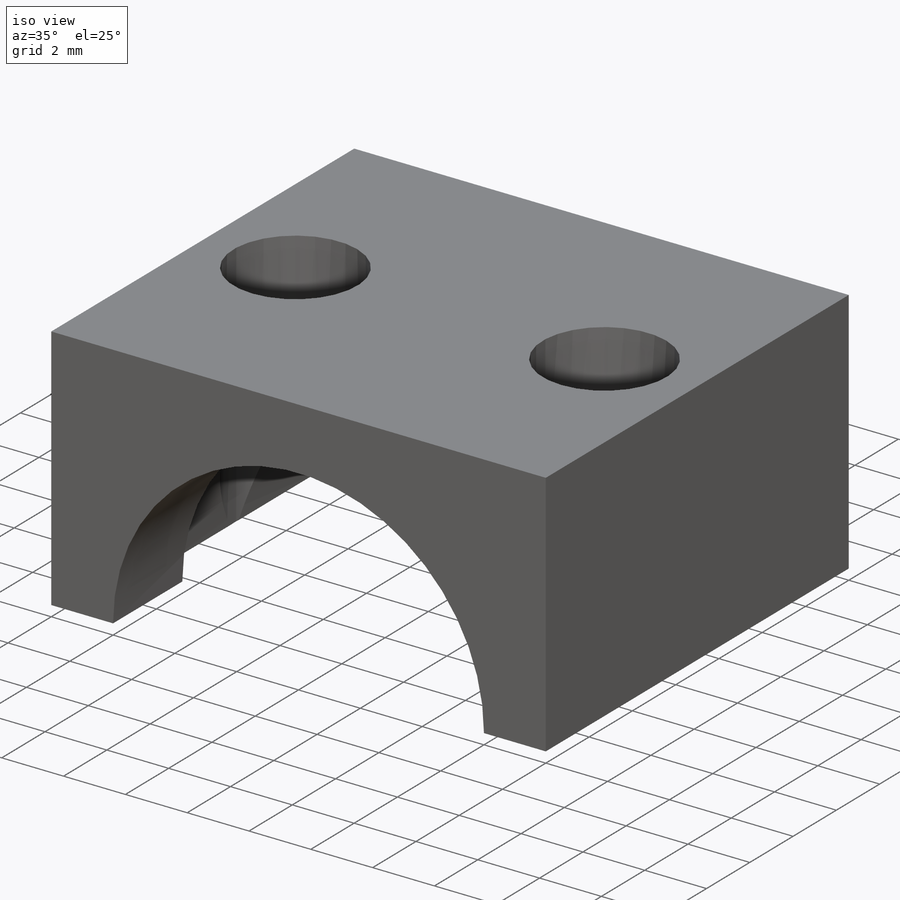
[diagram: iso view]
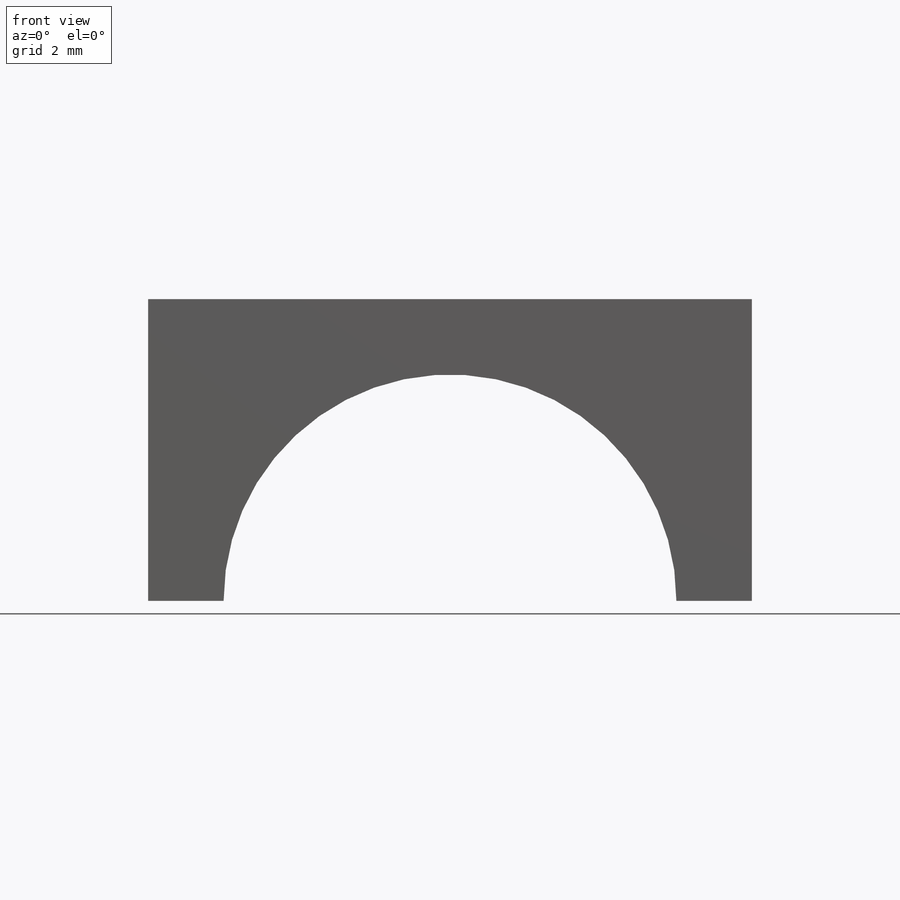
[diagram: front view]
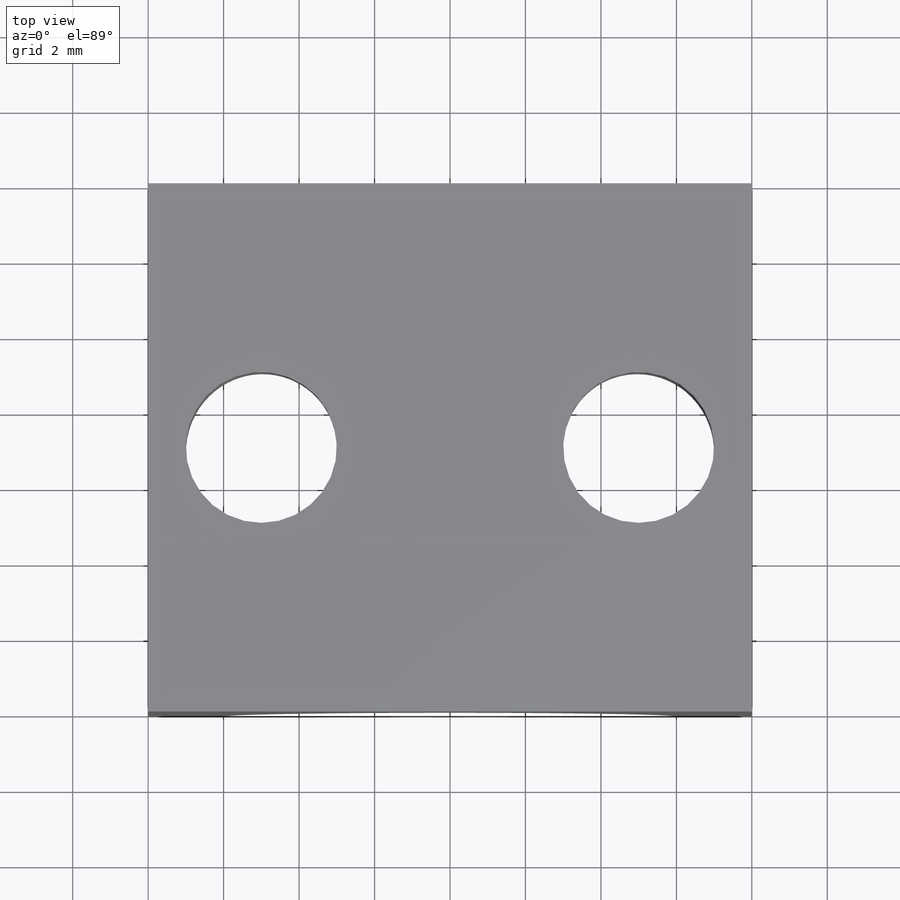
[diagram: top view]
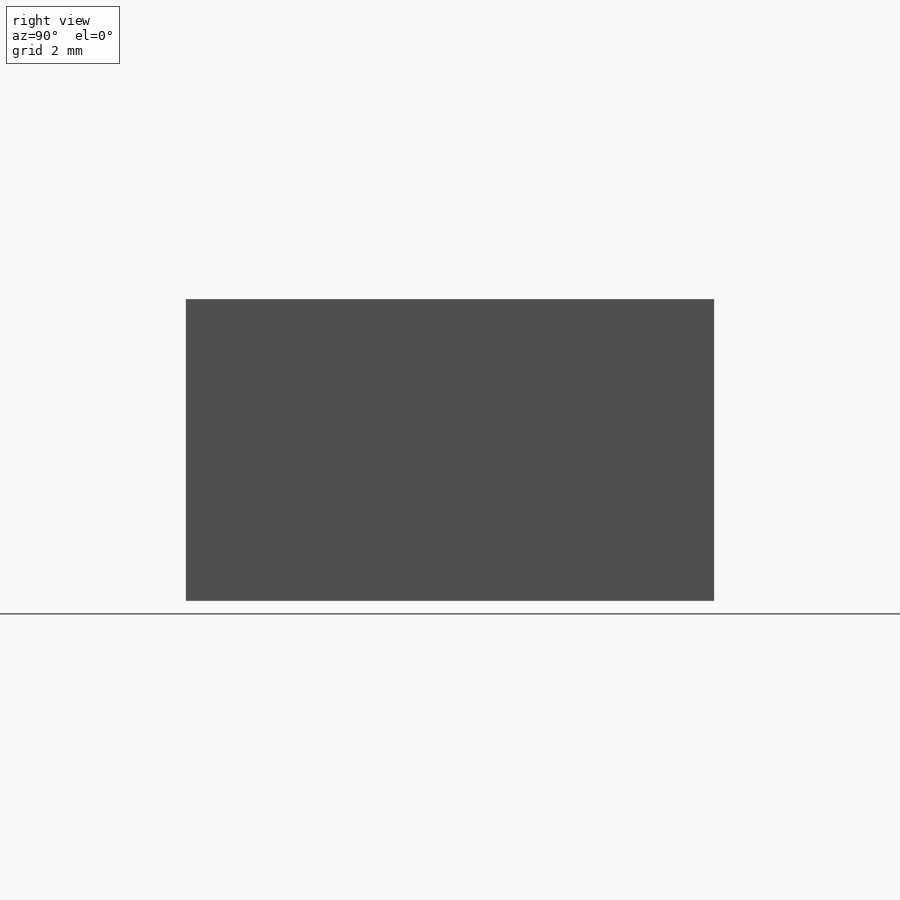
[diagram: right view]
SOLIDWORKS PART (.sldprt)
format: sldprt  version: not decoded by parser v0  size: 180,736 bytes
history: native  units: mm
features: plane x4, sketch x3, cut_extrude x2, material x1, extrude x1 (+13 scaffold rows collapsed)
feature tree (24):
  scaffold x13  (default folders/planes/origin — collapsed)
  material  "Matériau <non spécifié>"
  plane  "Plan de face"
  plane  "Plan de dessus"
  plane  "Plan de droite"
  sketch  "Esquisse1"  dims[D1=1.0mm]
  extrude  "Extrusion1"  Depth=14mm
  plane  "Plan1"  Offset=7mm
  sketch  "Esquisse3"  dims[D1=~6.766363mm]
  cut_extrude  "Extrusion2"  Depth=3.8mm
  sketch  "Esquisse4"  dims[D1=~1.227863mm]
  cut_extrude  "Extrusion3"  [1 undecoded]
decode coverage: 5 of 6 modeling features carry decoded parameters
note: ~ marks probable driven/reference dimensions
note: 1 parameter value undecoded
note: suppression state not decoded; provenance and decode notes live in map.json
